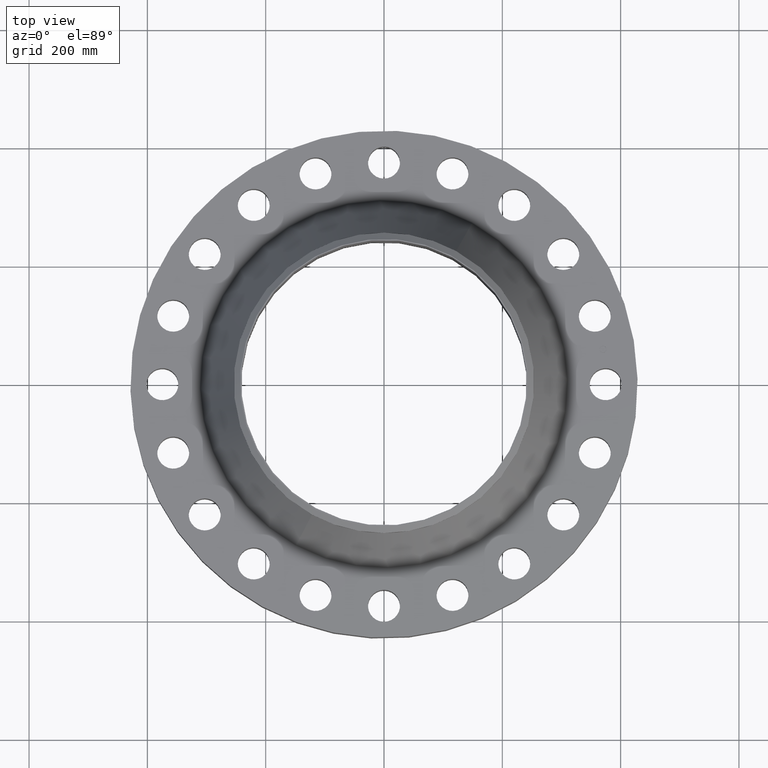
[diagram: clean part render]
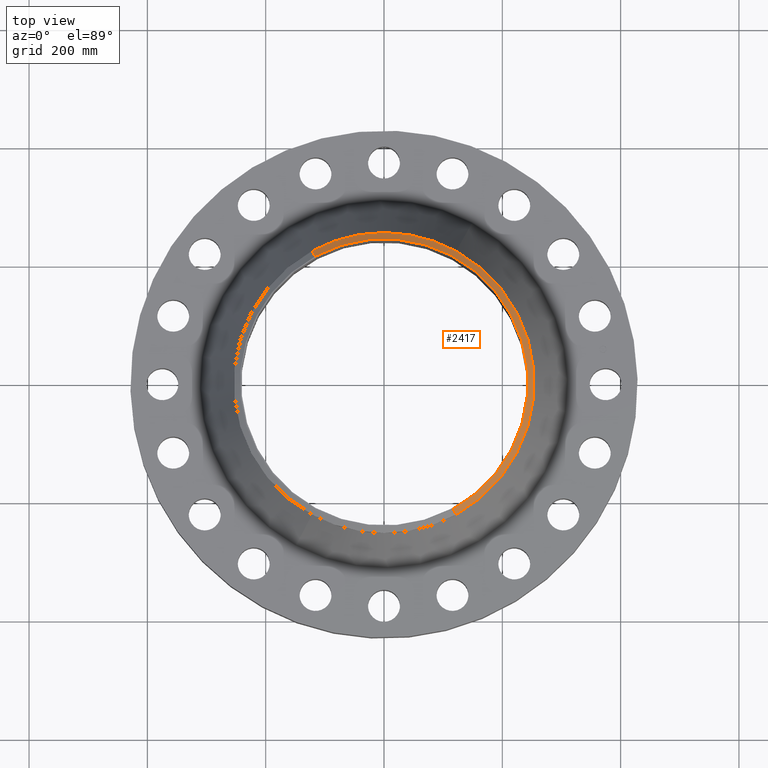
[diagram: same view with one face highlighted and labeled with its STEP entity id]
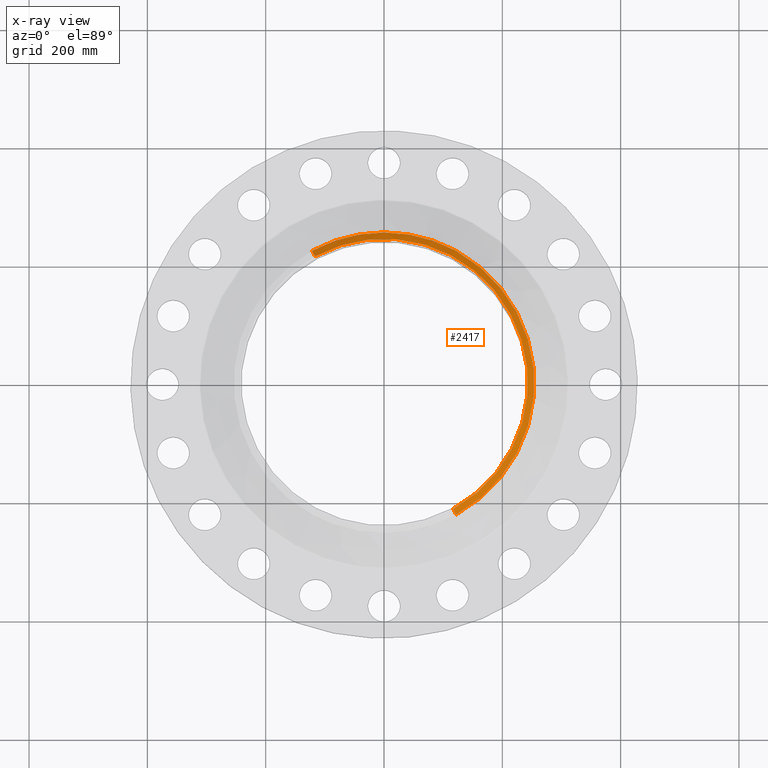
[diagram: x-ray of the same camera — body ghosted, the highlighted face saturated]
A machine part, top view. The second image highlights one B-rep face of the part: STEP entity #2417.
The next image is the same camera in x-ray: the body ghosted, the highlighted face saturated — about 0% of this face is hidden behind the body in this view.
In plain terms, the highlighted conical surface has half-angle 52.5 deg.
Its self-contained STEP definition (entity closure, byte-faithful):
#2110=AXIS2_PLACEMENT_3D('Circle Axis2P3D',#2108,#2109,$) ;
#2382=AXIS2_PLACEMENT_3D('Cone Axis2P3D',#2379,#2380,#2381) ;
#2400=AXIS2_PLACEMENT_3D('Circle Axis2P3D',#2398,#2399,$) ;
#2407=AXIS2_PLACEMENT_3D('Circle Axis2P3D',#2405,#2406,$) ;
#2108=CARTESIAN_POINT('Axis2P3D Location',(-5.59482469102E-016,-1.1189649382E-015,9.75000000004)) ;
#2112=CARTESIAN_POINT('Vertex',(4.59229265917,-8.40613532712,9.75000000004)) ;
#2114=CARTESIAN_POINT('Vertex',(-4.59229265917,8.40613532712,9.75000000004)) ;
#2379=CARTESIAN_POINT('Axis2P3D Location',(0.,0.,9.75000000004)) ;
#2384=CARTESIAN_POINT('Line Origine',(-4.69327402262,8.59098047303,9.58837797698)) ;
#2388=CARTESIAN_POINT('Vertex',(-4.79425538604,8.7758256189,9.42675595389)) ;
#2391=CARTESIAN_POINT('Line Origine',(4.69327402262,-8.59098047303,9.58837797698)) ;
#2395=CARTESIAN_POINT('Vertex',(4.79425538605,-8.77582561892,9.42675595394)) ;
#2398=CARTESIAN_POINT('Axis2P3D Location',(0.,0.,9.42675595394)) ;
#2402=CARTESIAN_POINT('Vertex',(4.79425538605,8.7758256189,9.42675595389)) ;
#2405=CARTESIAN_POINT('Axis2P3D Location',(0.,0.,9.42675595394)) ;
#2109=DIRECTION('Axis2P3D Direction',(0.,0.,-0.0393700787402)) ;
#2380=DIRECTION('Axis2P3D Direction',(-0.,-0.,-0.0393700787402)) ;
#2381=DIRECTION('Axis2P3D XDirection',(-0.0188750212049,0.0345504945626,0.)) ;
#2385=DIRECTION('Vector Direction',(-0.014974561121,0.02741075027,-0.023966985394)) ;
#2392=DIRECTION('Vector Direction',(0.014974561121,-0.02741075027,-0.023966985394)) ;
#2399=DIRECTION('Axis2P3D Direction',(-0.,0.,-0.0393700787402)) ;
#2406=DIRECTION('Axis2P3D Direction',(-0.,0.,-0.0393700787402)) ;
#2386=VECTOR('Line Direction',#2385,0.0393700787402) ;
#2393=VECTOR('Line Direction',#2392,0.0393700787402) ;
#2411=ORIENTED_EDGE('',*,*,#2390,.F.) ;
#2412=ORIENTED_EDGE('',*,*,#2116,.F.) ;
#2413=ORIENTED_EDGE('',*,*,#2397,.T.) ;
#2414=ORIENTED_EDGE('',*,*,#2404,.T.) ;
#2415=ORIENTED_EDGE('',*,*,#2409,.F.) ;
#2417=ADVANCED_FACE('PartBody',(#2416),#2383,.T.) ;
#2111=CIRCLE('generated circle',#2110,9.5787401575) ;
#2401=CIRCLE('generated circle',#2400,10.) ;
#2408=CIRCLE('generated circle',#2407,10.) ;
#2383=CONICAL_SURFACE('Cone',#2382,9.57874015752,0.916297857297) ;
#2116=EDGE_CURVE('',#2113,#2115,#2111,.F.) ;
#2390=EDGE_CURVE('',#2115,#2389,#2387,.T.) ;
#2397=EDGE_CURVE('',#2113,#2396,#2394,.T.) ;
#2404=EDGE_CURVE('',#2396,#2403,#2401,.F.) ;
#2409=EDGE_CURVE('',#2389,#2403,#2408,.T.) ;
#2410=EDGE_LOOP('',(#2411,#2412,#2413,#2414,#2415)) ;
#2416=FACE_OUTER_BOUND('',#2410,.T.) ;
#2387=LINE('Line',#2384,#2386) ;
#2394=LINE('Line',#2391,#2393) ;
#2113=VERTEX_POINT('',#2112) ;
#2115=VERTEX_POINT('',#2114) ;
#2389=VERTEX_POINT('',#2388) ;
#2396=VERTEX_POINT('',#2395) ;
#2403=VERTEX_POINT('',#2402) ;